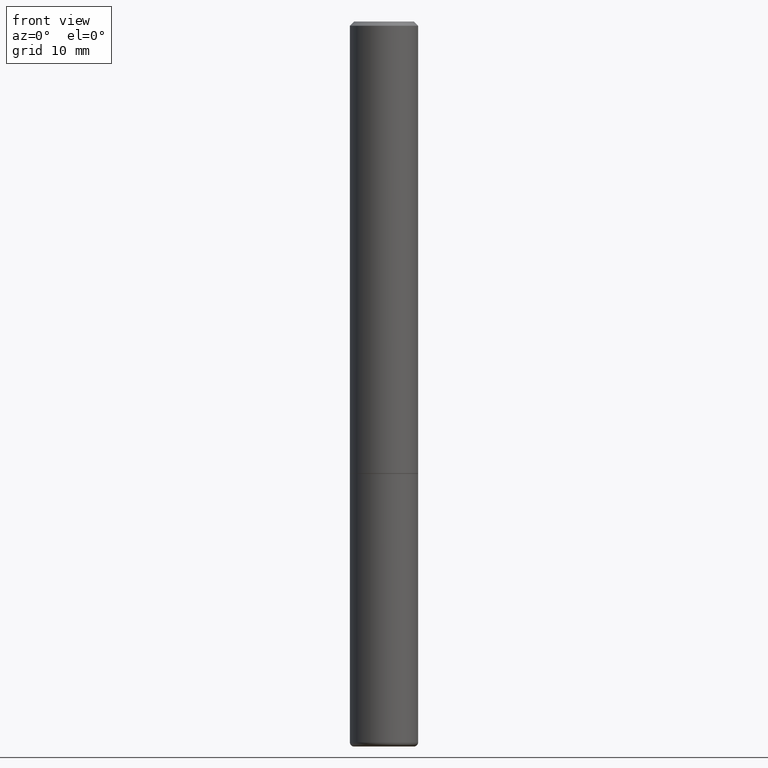
[diagram: clean part render]
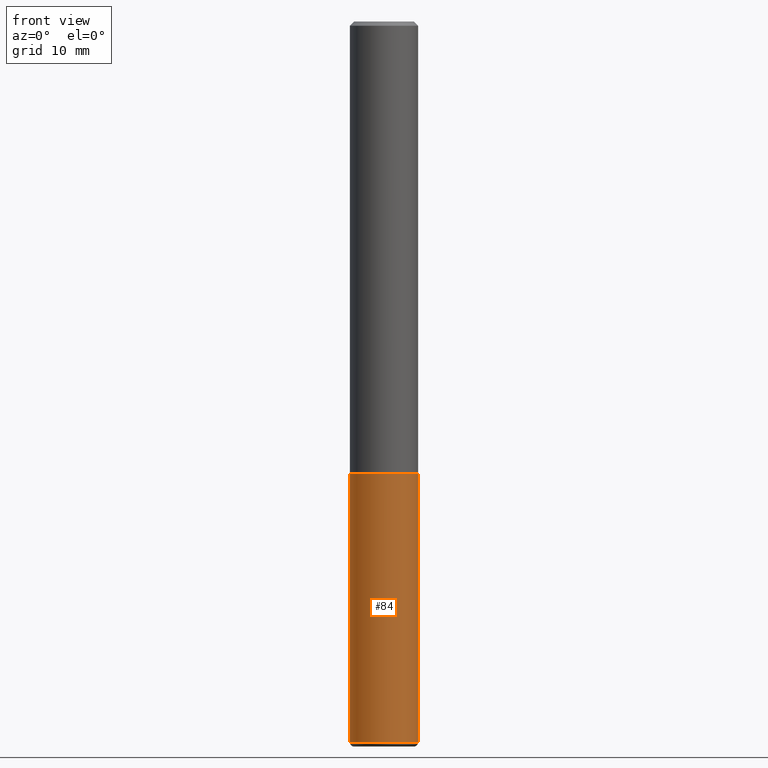
[diagram: same view with one face highlighted and labeled with its STEP entity id]
A machine part, front view. The second image highlights one B-rep face of the part: STEP entity #84.
In plain terms, the highlighted cylindrical surface (edge-blend (fillet) strip) has radius 4.0005 mm, axis along (-0, 0, 1).
Its self-contained STEP definition (entity closure, byte-faithful):
#9 = CIRCLE ( 'NONE', #125, 0.1575000000000000011 ) ;
#11 = LINE ( 'NONE', #106, #315 ) ;
#18 = CYLINDRICAL_SURFACE ( 'NONE', #297, 0.1575000000000000289 ) ;
#19 = CARTESIAN_POINT ( 'NONE',  ( 8.135585624416713045E-29, -1.161546011806337842E-14, -3.326799999999999979 ) ) ;
#32 = ORIENTED_EDGE ( 'NONE', *, *, #94, .T. ) ;
#43 = CARTESIAN_POINT ( 'NONE',  ( 5.102959757866523939E-29, -7.285674109763990928E-15, -2.086699999999999999 ) ) ;
#58 = ORIENTED_EDGE ( 'NONE', *, *, #175, .T. ) ;
#61 = ORIENTED_EDGE ( 'NONE', *, *, #178, .F. ) ;
#64 = AXIS2_PLACEMENT_3D ( 'NONE', #19, #139, #381 ) ;
#76 = DIRECTION ( 'NONE',  ( 1.000000000000000000, -6.982962677686268288E-15, 0.000000000000000000 ) ) ;
#84 = ADVANCED_FACE ( 'NONE', ( #334 ), #18, .T. ) ;
#94 = EDGE_CURVE ( 'NONE', #313, #188, #337, .T. ) ;
#106 = CARTESIAN_POINT ( 'NONE',  ( 0.1575000000000000289, -1.099816621735587283E-15, 7.679978421878599434E-30 ) ) ;
#125 = AXIS2_PLACEMENT_3D ( 'NONE', #43, #155, #76 ) ;
#139 = DIRECTION ( 'NONE',  ( -2.445468806185136597E-29, 3.491481338843145583E-15, 1.000000000000000000 ) ) ;
#155 = DIRECTION ( 'NONE',  ( -2.445468806185136597E-29, 3.491481338843145583E-15, 1.000000000000000000 ) ) ;
#168 = CARTESIAN_POINT ( 'NONE',  ( 0.000000000000000000, 0.000000000000000000, 0.000000000000000000 ) ) ;
#173 = VERTEX_POINT ( 'NONE', #325 ) ;
#175 = EDGE_CURVE ( 'NONE', #188, #173, #11, .T. ) ;
#178 = EDGE_CURVE ( 'NONE', #244, #173, #9, .T. ) ;
#188 = VERTEX_POINT ( 'NONE', #333 ) ;
#218 = CARTESIAN_POINT ( 'NONE',  ( -0.1575000000000000289, 1.119104808822157998E-15, -7.747322767151478386E-30 ) ) ;
#221 = LINE ( 'NONE', #218, #373 ) ;
#233 = DIRECTION ( 'NONE',  ( -2.445468806185136877E-29, 3.491481338843145188E-15, 1.000000000000000000 ) ) ;
#244 = VERTEX_POINT ( 'NONE', #359 ) ;
#297 = AXIS2_PLACEMENT_3D ( 'NONE', #168, #409, #306 ) ;
#306 = DIRECTION ( 'NONE',  ( 1.000000000000000000, -6.982962677686267499E-15, 4.876176775795935232E-29 ) ) ;
#313 = VERTEX_POINT ( 'NONE', #386 ) ;
#315 = VECTOR ( 'NONE', #233, 39.37007874015748143 ) ;
#325 = CARTESIAN_POINT ( 'NONE',  ( 0.1575000000000000011, -8.385490731499577619E-15, -2.086699999999999999 ) ) ;
#333 = CARTESIAN_POINT ( 'NONE',  ( 0.1574999999999999456, -1.271527673979896669E-14, -3.326799999999999979 ) ) ;
#334 = FACE_OUTER_BOUND ( 'NONE', #380, .T. ) ;
#337 = CIRCLE ( 'NONE', #64, 0.1575000000000000289 ) ;
#354 = DIRECTION ( 'NONE',  ( -2.445468806185136877E-29, 3.491481338843145188E-15, 1.000000000000000000 ) ) ;
#359 = CARTESIAN_POINT ( 'NONE',  ( -0.1575000000000000011, -8.331462305091527069E-15, -2.086699999999999999 ) ) ;
#373 = VECTOR ( 'NONE', #354, 39.37007874015748143 ) ;
#375 = ORIENTED_EDGE ( 'NONE', *, *, #383, .F. ) ;
#380 = EDGE_LOOP ( 'NONE', ( #375, #32, #58, #61 ) ) ;
#381 = DIRECTION ( 'NONE',  ( 1.000000000000000000, -6.982962677686273810E-15, 0.000000000000000000 ) ) ;
#383 = EDGE_CURVE ( 'NONE', #313, #244, #221, .T. ) ;
#386 = CARTESIAN_POINT ( 'NONE',  ( -0.1574999999999999456, -1.049635530924122081E-14, -3.326799999999999979 ) ) ;
#409 = DIRECTION ( 'NONE',  ( -2.445468806185136597E-29, 3.491481338843145583E-15, 1.000000000000000000 ) ) ;